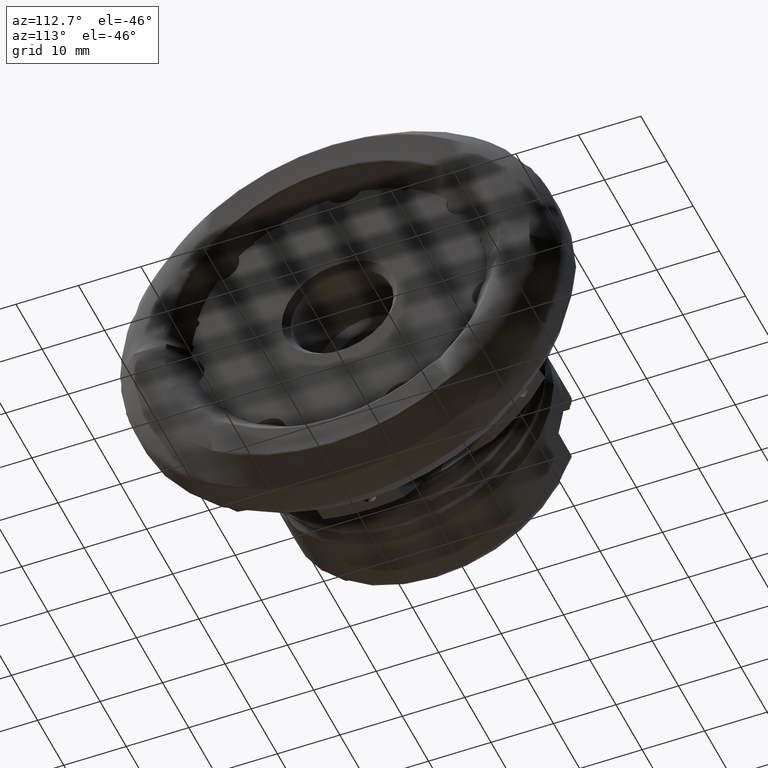
[diagram: clean part render]
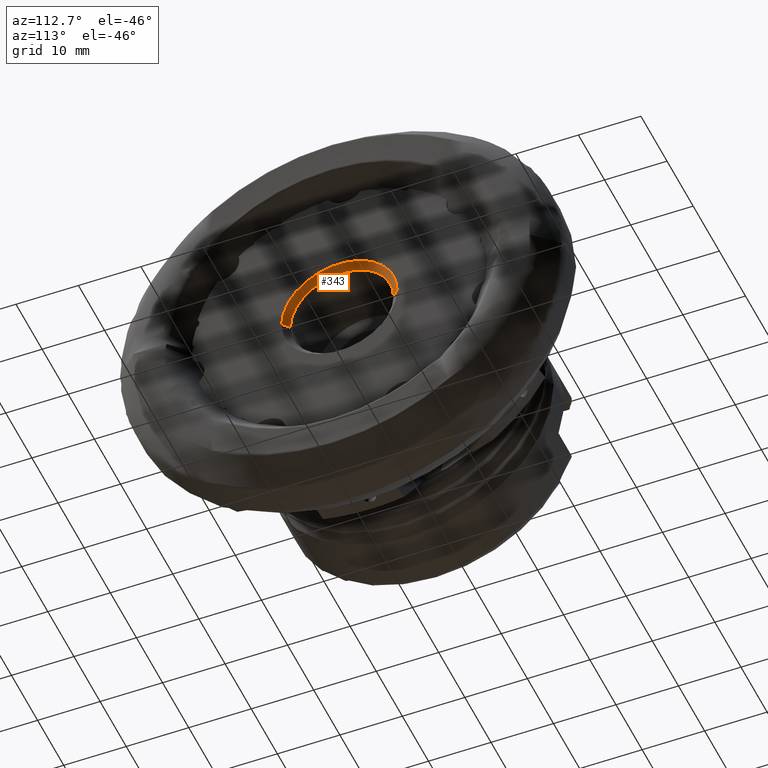
[diagram: same view with one face highlighted and labeled with its STEP entity id]
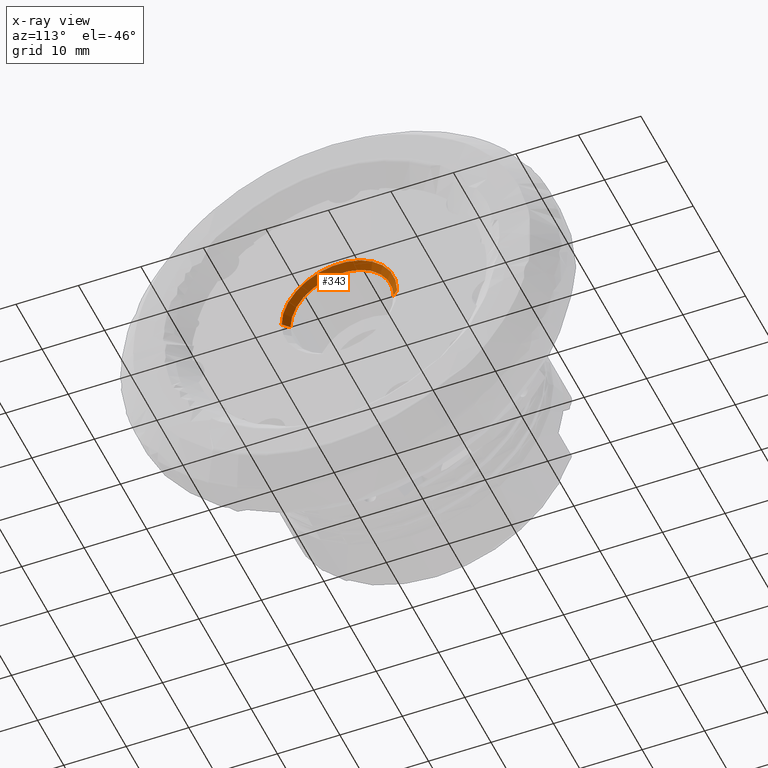
[diagram: x-ray of the same camera — body ghosted, the highlighted face saturated]
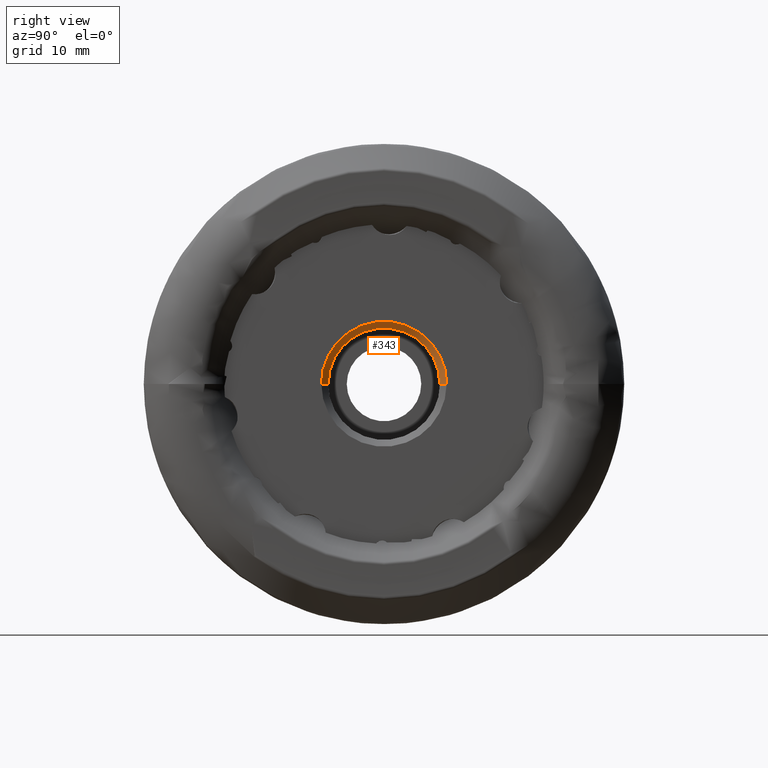
[diagram: same view with one face highlighted and labeled with its STEP entity id]
A machine part, auxiliary view. The second image highlights one B-rep face of the part: STEP entity #343.
The next image is the same camera in x-ray: the body ghosted, the highlighted face saturated — about 0% of this face is hidden behind the body in this view.
A second angle (right view) of the same face is appended — the face is thin or edge-on in the first view.
In plain terms, the highlighted conical surface has half-angle 45 deg.
Its self-contained STEP definition (entity closure, byte-faithful):
#208 = FACE_OUTER_BOUND ( 'NONE', #3881, .T. ) ;
#305 = AXIS2_PLACEMENT_3D ( 'NONE', #2860, #9848, #5277 ) ;
#343 = ADVANCED_FACE ( 'NONE', ( #208 ), #12555, .F. ) ;
#769 = EDGE_CURVE ( 'Kante60', #7443, #6157, #840, .T. ) ;
#840 = CIRCLE ( 'NONE', #11418, 8.250000000000000000 ) ;
#1906 = CARTESIAN_POINT ( 'NONE',  ( -2.000000000000000000, 9.250000000000000000, 0.0000000000000000000 ) ) ;
#2004 = DIRECTION ( 'NONE',  ( 0.7071067811865482400, -0.7071067811865469100, 8.659560562354927900E-017 ) ) ;
#2401 = ORIENTED_EDGE ( 'NONE', *, *, #12286, .T. ) ;
#2749 = VECTOR ( 'NONE', #2004, 999.9999999999998900 ) ;
#2860 = CARTESIAN_POINT ( 'NONE',  ( -1.999999999999998200, -3.306558123772058100E-016, 0.0000000000000000000 ) ) ;
#2941 = CARTESIAN_POINT ( 'NONE',  ( -3.000000000000000000, 8.250000000000000000, 0.0000000000000000000 ) ) ;
#2981 = DIRECTION ( 'NONE',  ( 1.000000000000000000, 1.653279061886031000E-016, -0.0000000000000000000 ) ) ;
#3122 = ORIENTED_EDGE ( 'NONE', *, *, #769, .F. ) ;
#3881 = EDGE_LOOP ( 'NONE', ( #9045, #3122, #8350, #2401 ) ) ;
#3997 = VECTOR ( 'NONE', #9540, 1000.000000000000000 ) ;
#4259 = CARTESIAN_POINT ( 'NONE',  ( -1.999999999999998200, -3.306558123772058100E-016, 0.0000000000000000000 ) ) ;
#4274 = VERTEX_POINT ( 'NONE', #7460 ) ;
#5261 = DIRECTION ( 'NONE',  ( -1.875376730785737500E-016, 1.000000000000000000, 0.0000000000000000000 ) ) ;
#5277 = DIRECTION ( 'NONE',  ( -1.875376730785737500E-016, 1.000000000000000000, 0.0000000000000000000 ) ) ;
#5382 = LINE ( 'NONE', #5874, #2749 ) ;
#5874 = CARTESIAN_POINT ( 'NONE',  ( -1.999999999999996700, -9.250000000000000000, 1.132798289211301700E-015 ) ) ;
#6157 = VERTEX_POINT ( 'NONE', #10075 ) ;
#6669 = LINE ( 'NONE', #12521, #3997 ) ;
#7127 = CIRCLE ( 'NONE', #9856, 9.250000000000000000 ) ;
#7443 = VERTEX_POINT ( 'NONE', #2941 ) ;
#7460 = CARTESIAN_POINT ( 'NONE',  ( -1.999999999999996700, -9.250000000000000000, 1.132798289211301700E-015 ) ) ;
#8350 = ORIENTED_EDGE ( 'NONE', *, *, #11114, .T. ) ;
#8963 = CARTESIAN_POINT ( 'NONE',  ( -2.999999999999998700, -4.959837185658090100E-016, 0.0000000000000000000 ) ) ;
#9045 = ORIENTED_EDGE ( 'NONE', *, *, #12108, .F. ) ;
#9540 = DIRECTION ( 'NONE',  ( 0.7071067811865479100, 0.7071067811865471300, 0.0000000000000000000 ) ) ;
#9848 = DIRECTION ( 'NONE',  ( 1.000000000000000000, 1.653279061886031000E-016, -0.0000000000000000000 ) ) ;
#9856 = AXIS2_PLACEMENT_3D ( 'NONE', #4259, #11250, #5261 ) ;
#9957 = DIRECTION ( 'NONE',  ( -1.577021341797097300E-016, 1.000000000000000000, 0.0000000000000000000 ) ) ;
#10075 = CARTESIAN_POINT ( 'NONE',  ( -2.999999999999997300, -8.250000000000000000, 1.071565949253933900E-015 ) ) ;
#10676 = VERTEX_POINT ( 'NONE', #1906 ) ;
#11114 = EDGE_CURVE ( 'NONE', #7443, #10676, #6669, .T. ) ;
#11250 = DIRECTION ( 'NONE',  ( 1.000000000000000000, 1.653279061886031000E-016, -0.0000000000000000000 ) ) ;
#11418 = AXIS2_PLACEMENT_3D ( 'NONE', #8963, #2981, #9957 ) ;
#12108 = EDGE_CURVE ( 'NONE', #6157, #4274, #5382, .T. ) ;
#12286 = EDGE_CURVE ( 'NONE', #10676, #4274, #7127, .T. ) ;
#12521 = CARTESIAN_POINT ( 'NONE',  ( -2.000000000000000000, 9.250000000000000000, 0.0000000000000000000 ) ) ;
#12555 = CONICAL_SURFACE ( 'NONE', #305, 9.250000000000000000, 0.7853981633974476100 ) ;